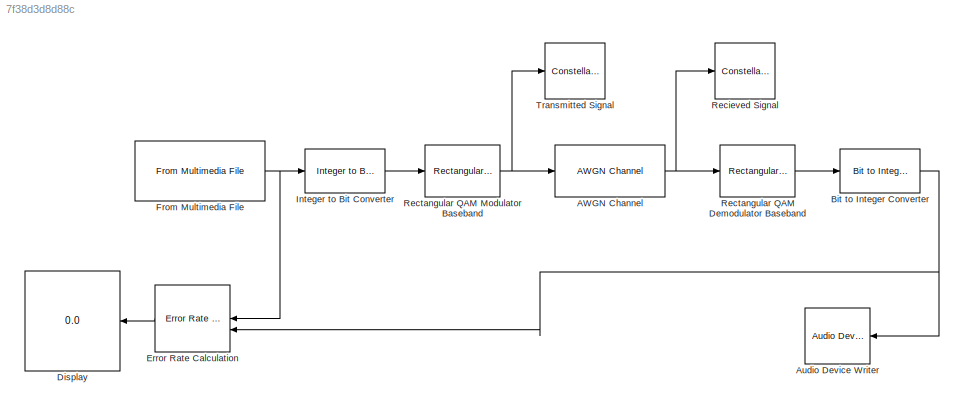
MODEL slx_7f38d3d8d88c
KIND model
CONFIG AbsTol = auto
CONFIG EnableMultiTasking = off
CONFIG FixedStep = auto
CONFIG MaxStep = auto
CONFIG MinStep = auto
CONFIG RelTol = 1e-3
CONFIG SampleTimeConstraint = Unconstrained
CONFIG SolverName = VariableStepAuto
CONFIG StartTime = 0.0
CONFIG StopTime = 70
BLOCK [Reference] AWGN Channel   REF=commchan3/AWGN
Channel
  SourceBlock = commchan3/AWGN\nChannel
  SourceType = AWGN Channel
BLOCK [Reference] Audio Device Writer   REF=dspsnks4/Audio Device
Writer
  SourceBlock = dspsnks4/Audio Device\nWriter
  SourceType = Audio Device Writer
BLOCK [Reference] Bit to Integer Converter   REF=simulink/Logic and Bit
Operations/Bit to Integer
Converter
  SourceBlock = simulink/Logic and Bit\nOperations/Bit to Integer\nConverter
  SourceType = Bit to Integer Converter
BLOCK [Display] Display 
  Decimation = 1
BLOCK [Reference] Error Rate Calculation   REF=commsink2/Error Rate
Calculation
  SourceBlock = commsink2/Error Rate\nCalculation
  SourceType = Error Rate Calculation
BLOCK [Reference] From Multimedia File  REF=dspvision/From Multimedia File
  LibrarySourceBlock = dspsrcs4/From Multimedia File
  SourceBlock = dspvision/From Multimedia File
  SourceType = From Multimedia File
BLOCK [Reference] Integer to Bit Converter   REF=simulink/Logic and Bit
Operations/Integer to Bit
Converter
  SourceBlock = simulink/Logic and Bit\nOperations/Integer to Bit\nConverter
  SourceType = Integer to Bit Converter
BLOCK [ConstellationDiagram] Recieved Signal
  GraphicalSettings = {"GraphicalSettings":{"Style":{}}}
  ScopeFrameLocation = window
  WasSavedAsWebScope = on
  WindowPosition = [382.000000,84.000000,600.000000,600.000000,]
BLOCK [Reference] Rectangular QAM Demodulator Baseband   REF=commdigbbndam3/Rectangular QAM
Demodulator
Baseband
  SourceBlock = commdigbbndam3/Rectangular QAM\nDemodulator\nBaseband
  SourceType = Rectangular QAM Demodulator Baseband
BLOCK [Reference] Rectangular QAM Modulator Baseband   REF=commdigbbndam3/Rectangular QAM
Modulator
Baseband
  LibrarySourceBlock = commhdldigbbndam/Rectangular QAM\nModulator\nBaseband
  SourceBlock = commdigbbndam3/Rectangular QAM\nModulator\nBaseband
  SourceType = Rectangular QAM Modulator Baseband
BLOCK [ConstellationDiagram] Transmitted Signal
  GraphicalSettings = {"GraphicalSettings":{"Style":{}}}
  ScopeFrameLocation = window
  WasSavedAsWebScope = on
  WindowPosition = [391.000000,41.000000,600.000000,600.000000,]
NET AWGN Channel :1 -> Recieved Signal:1, Rectangular QAM Demodulator Baseband :1
NET Bit to Integer Converter :1 -> Audio Device Writer :1, Error Rate Calculation :2
LINE Error Rate Calculation :1 -> Display :1
NET From Multimedia File:1 -> Error Rate Calculation :1, Integer to Bit Converter :1
LINE Integer to Bit Converter :1 -> Rectangular QAM Modulator Baseband :1
LINE Rectangular QAM Demodulator Baseband :1 -> Bit to Integer Converter :1
NET Rectangular QAM Modulator Baseband :1 -> AWGN Channel :1, Transmitted Signal:1
note: NET lines group one-source signal fan-out (src -> all destinations, sorted); 1:1 wires keep LINE
